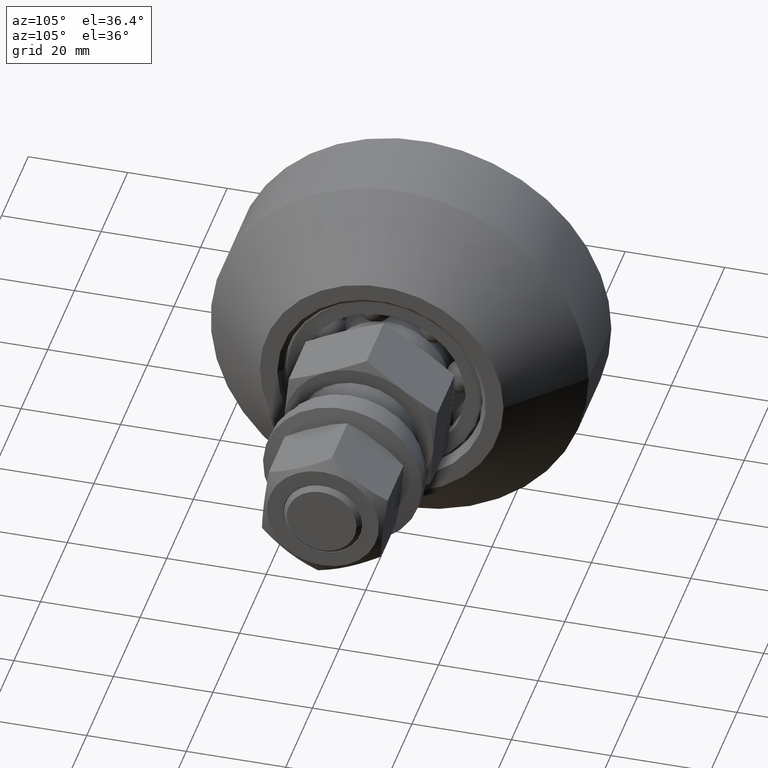
[diagram: clean part render]
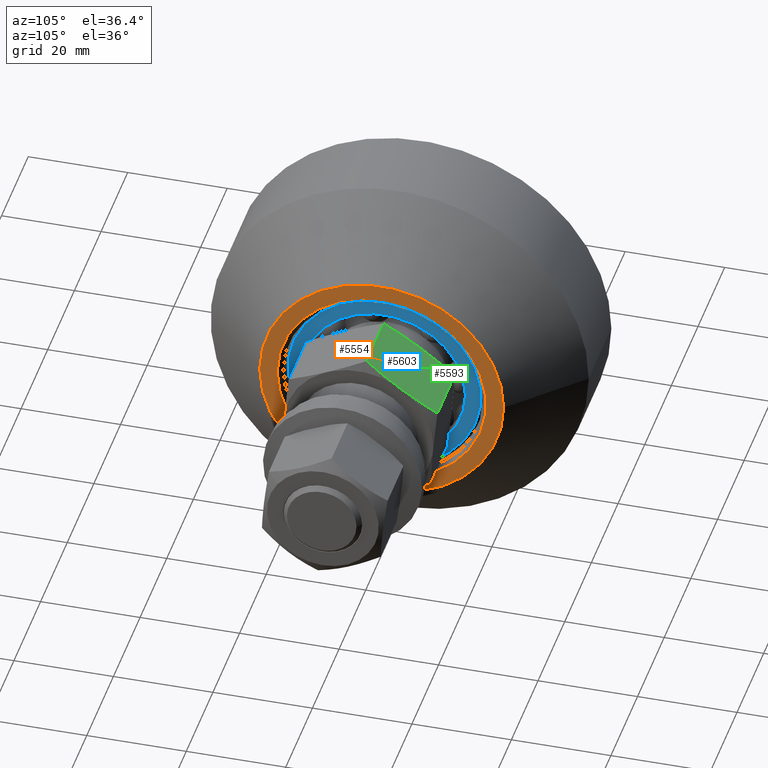
[diagram: same view with three faces highlighted in distinct colors, each labeled with its STEP entity id]
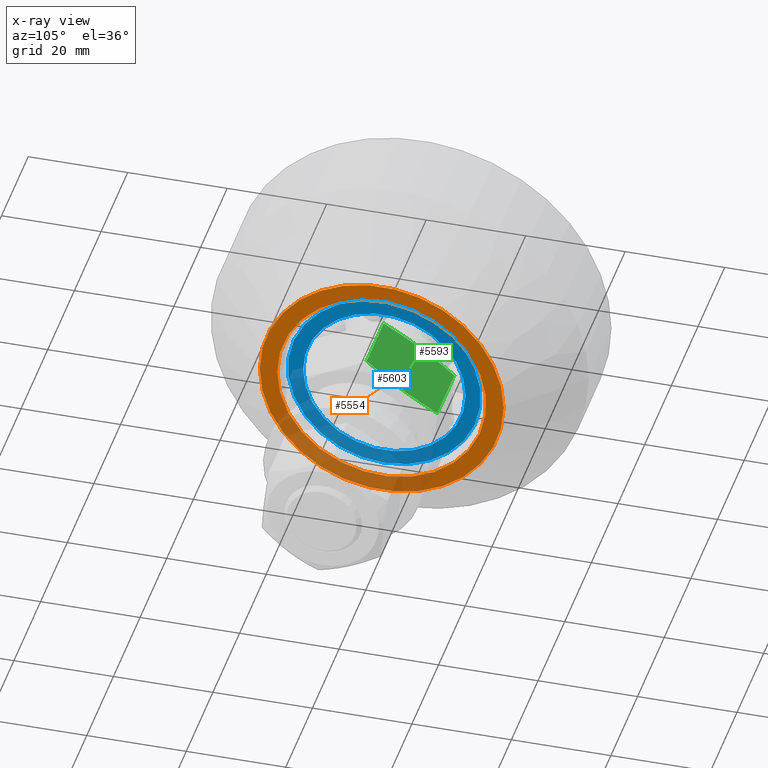
[diagram: x-ray of the same camera — body ghosted, the three highlighted faces saturated]
A machine part, auxiliary view with three faces highlighted in distinct colors.
The next image is the same camera in x-ray (body ghosted, the three faces saturated) — at least one of them is partly hidden behind the body in this view.
Their STEP definitions:

[orange] entity #5554 — the highlighted planar face has unit normal (1, 0, 0).
#168=FACE_BOUND('',#1130,.T.);
#558=PLANE('',#6286);
#822=FACE_OUTER_BOUND('',#1129,.T.);
#1129=EDGE_LOOP('',(#4869));
#1130=EDGE_LOOP('',(#4870));
#2081=CIRCLE('',#6283,21.);
#2084=CIRCLE('',#6287,24.5);
#2598=VERTEX_POINT('',#9603);
#2601=VERTEX_POINT('',#9611);
#3383=EDGE_CURVE('',#2598,#2598,#2081,.T.);
#3387=EDGE_CURVE('',#2601,#2601,#2084,.T.);
#4869=ORIENTED_EDGE('',*,*,#3387,.F.);
#4870=ORIENTED_EDGE('',*,*,#3383,.F.);
#5554=ADVANCED_FACE('',(#822,#168),#558,.T.);
#6283=AXIS2_PLACEMENT_3D('',#9604,#7638,#7639);
#6286=AXIS2_PLACEMENT_3D('',#9610,#7645,#7646);
#6287=AXIS2_PLACEMENT_3D('',#9612,#7647,#7648);
#7638=DIRECTION('center_axis',(-1.,0.,0.));
#7639=DIRECTION('ref_axis',(0.,-1.,0.));
#7645=DIRECTION('center_axis',(-1.,0.,0.));
#7646=DIRECTION('ref_axis',(0.,0.,1.));
#7647=DIRECTION('center_axis',(1.,0.,0.));
#7648=DIRECTION('ref_axis',(0.,1.,0.));
#9603=CARTESIAN_POINT('',(-22.,21.,-2.57175827820944E-15));
#9604=CARTESIAN_POINT('Origin',(-22.,0.,0.));
#9610=CARTESIAN_POINT('Origin',(-22.,22.25,0.));
#9611=CARTESIAN_POINT('',(-22.,-24.5,-3.00038465791102E-15));
#9612=CARTESIAN_POINT('Origin',(-22.,0.,0.));

[blue] entity #5603 — the highlighted planar face has unit normal (1, -0, -0).
#179=FACE_BOUND('',#1190,.T.);
#575=PLANE('',#6392);
#871=FACE_OUTER_BOUND('',#1189,.T.);
#1189=EDGE_LOOP('',(#5094));
#1190=EDGE_LOOP('',(#5095));
#2137=CIRCLE('',#6390,19.4);
#2139=CIRCLE('',#6393,16.32);
#2675=VERTEX_POINT('',#9894);
#2676=VERTEX_POINT('',#9898);
#3498=EDGE_CURVE('',#2675,#2675,#2137,.T.);
#3500=EDGE_CURVE('',#2676,#2676,#2139,.T.);
#5094=ORIENTED_EDGE('',*,*,#3498,.F.);
#5095=ORIENTED_EDGE('',*,*,#3500,.T.);
#5603=ADVANCED_FACE('',(#871,#179),#575,.T.);
#6390=AXIS2_PLACEMENT_3D('',#9895,#7887,#7888);
#6392=AXIS2_PLACEMENT_3D('',#9897,#7891,#7892);
#6393=AXIS2_PLACEMENT_3D('',#9899,#7893,#7894);
#7887=DIRECTION('center_axis',(0.,0.,-1.));
#7888=DIRECTION('ref_axis',(-1.22464679914735E-16,-1.,0.));
#7891=DIRECTION('center_axis',(0.,0.,1.));
#7892=DIRECTION('ref_axis',(1.,0.,0.));
#7893=DIRECTION('center_axis',(0.,0.,-1.));
#7894=DIRECTION('ref_axis',(0.,1.,-1.0200324008401E-16));
#9894=CARTESIAN_POINT('',(-19.4,-2.37581479034587E-15,12.));
#9895=CARTESIAN_POINT('Origin',(0.,0.,12.));
#9897=CARTESIAN_POINT('Origin',(0.,14.25,12.));
#9898=CARTESIAN_POINT('',(1.99862357620848E-15,-16.32,12.));
#9899=CARTESIAN_POINT('Origin',(0.,0.,12.));

[green] entity #5593 — the highlighted planar face has unit normal (-0, 0.5692, 0.8222).
#332=(
BOUNDED_CURVE()
B_SPLINE_CURVE(2,(#9696,#9697,#9698),.UNSPECIFIED.,.F.,.F.)
B_SPLINE_CURVE_WITH_KNOTS((3,3),(0.,0.790327458731379),.UNSPECIFIED.)
CURVE()
GEOMETRIC_REPRESENTATION_ITEM()
RATIONAL_B_SPLINE_CURVE((1.,1.03103791671952,1.))
REPRESENTATION_ITEM('')
);
#334=(
BOUNDED_CURVE()
B_SPLINE_CURVE(2,(#9707,#9708,#9709),.UNSPECIFIED.,.F.,.F.)
B_SPLINE_CURVE_WITH_KNOTS((3,3),(0.,0.790327458731379),.UNSPECIFIED.)
CURVE()
GEOMETRIC_REPRESENTATION_ITEM()
RATIONAL_B_SPLINE_CURVE((1.,1.03103791671952,1.))
REPRESENTATION_ITEM('')
);
#346=(
BOUNDED_CURVE()
B_SPLINE_CURVE(2,(#9773,#9774,#9775),.UNSPECIFIED.,.F.,.F.)
B_SPLINE_CURVE_WITH_KNOTS((3,3),(0.,0.790327458731372),.UNSPECIFIED.)
CURVE()
GEOMETRIC_REPRESENTATION_ITEM()
RATIONAL_B_SPLINE_CURVE((1.,1.03103791671951,1.))
REPRESENTATION_ITEM('')
);
#348=(
BOUNDED_CURVE()
B_SPLINE_CURVE(2,(#9784,#9785,#9786),.UNSPECIFIED.,.F.,.F.)
B_SPLINE_CURVE_WITH_KNOTS((3,3),(0.,0.790327458731372),.UNSPECIFIED.)
CURVE()
GEOMETRIC_REPRESENTATION_ITEM()
RATIONAL_B_SPLINE_CURVE((1.,1.03103791671951,1.))
REPRESENTATION_ITEM('')
);
#571=PLANE('',#6362);
#861=FACE_OUTER_BOUND('',#1176,.T.);
#1176=EDGE_LOOP('',(#5048,#5049,#5050,#5051,#5052,#5053,#5054,#5055));
#1527=LINE('',#9829,#1845);
#1533=LINE('',#9836,#1851);
#1539=LINE('',#9845,#1857);
#1541=LINE('',#9848,#1859);
#1845=VECTOR('',#7802,10.);
#1851=VECTOR('',#7810,10.);
#1857=VECTOR('',#7822,10.);
#1859=VECTOR('',#7826,10.);
#2625=VERTEX_POINT('',#9694);
#2626=VERTEX_POINT('',#9695);
#2628=VERTEX_POINT('',#9705);
#2629=VERTEX_POINT('',#9706);
#2646=VERTEX_POINT('',#9771);
#2647=VERTEX_POINT('',#9772);
#2649=VERTEX_POINT('',#9782);
#2650=VERTEX_POINT('',#9783);
#3425=EDGE_CURVE('',#2625,#2626,#332,.T.);
#3428=EDGE_CURVE('',#2628,#2629,#334,.T.);
#3446=EDGE_CURVE('',#2646,#2647,#346,.T.);
#3449=EDGE_CURVE('',#2649,#2650,#348,.T.);
#3464=EDGE_CURVE('',#2629,#2625,#1527,.T.);
#3470=EDGE_CURVE('',#2647,#2649,#1533,.T.);
#3476=EDGE_CURVE('',#2650,#2628,#1539,.T.);
#3478=EDGE_CURVE('',#2646,#2626,#1541,.T.);
#5048=ORIENTED_EDGE('',*,*,#3428,.T.);
#5049=ORIENTED_EDGE('',*,*,#3464,.T.);
#5050=ORIENTED_EDGE('',*,*,#3425,.T.);
#5051=ORIENTED_EDGE('',*,*,#3478,.F.);
#5052=ORIENTED_EDGE('',*,*,#3446,.T.);
#5053=ORIENTED_EDGE('',*,*,#3470,.T.);
#5054=ORIENTED_EDGE('',*,*,#3449,.T.);
#5055=ORIENTED_EDGE('',*,*,#3476,.T.);
#5593=ADVANCED_FACE('',(#861),#571,.T.);
#6362=AXIS2_PLACEMENT_3D('',#9850,#7829,#7830);
#7802=DIRECTION('',(0.,0.,1.));
#7810=DIRECTION('',(0.,0.,-1.));
#7822=DIRECTION('',(-1.,0.,0.));
#7826=DIRECTION('',(-1.,0.,0.));
#7829=DIRECTION('center_axis',(0.,1.,0.));
#7830=DIRECTION('ref_axis',(0.,0.,-1.));
#9694=CARTESIAN_POINT('',(1.5,15.,0.784641862145888));
#9695=CARTESIAN_POINT('',(2.11628314259158,15.,8.66025403784438));
#9696=CARTESIAN_POINT('Ctrl Pts',(1.5,15.,0.784641862145854));
#9697=CARTESIAN_POINT('Ctrl Pts',(1.55119818764891,15.,4.44240251296674));
#9698=CARTESIAN_POINT('Ctrl Pts',(2.11628314259158,15.,8.66025403784439));
#9705=CARTESIAN_POINT('',(2.11628314259158,15.,-8.66025403784439));
#9706=CARTESIAN_POINT('',(1.5,15.,-0.784641862145888));
#9707=CARTESIAN_POINT('Ctrl Pts',(2.11628314259158,15.,-8.66025403784439));
#9708=CARTESIAN_POINT('Ctrl Pts',(1.55119818764891,15.,-4.44240251296674));
#9709=CARTESIAN_POINT('Ctrl Pts',(1.5,15.,-0.784641862145854));
#9771=CARTESIAN_POINT('',(14.8837168574084,15.,8.66025403784438));
#9772=CARTESIAN_POINT('',(15.5,15.,0.784641862145888));
#9773=CARTESIAN_POINT('Ctrl Pts',(14.8837168574084,15.,8.6602540378444));
#9774=CARTESIAN_POINT('Ctrl Pts',(15.4488018123511,15.,4.44240251296679));
#9775=CARTESIAN_POINT('Ctrl Pts',(15.5,15.,0.784641862145928));
#9782=CARTESIAN_POINT('',(15.5,15.,-0.784641862145888));
#9783=CARTESIAN_POINT('',(14.8837168574084,15.,-8.66025403784439));
#9784=CARTESIAN_POINT('Ctrl Pts',(15.5,15.,-0.784641862145928));
#9785=CARTESIAN_POINT('Ctrl Pts',(15.4488018123511,15.,-4.44240251296679));
#9786=CARTESIAN_POINT('Ctrl Pts',(14.8837168574084,15.,-8.6602540378444));
#9829=CARTESIAN_POINT('',(1.5,15.,-5.55111512312578E-16));
#9836=CARTESIAN_POINT('',(15.5,15.,8.66025403784439));
#9845=CARTESIAN_POINT('',(15.5,15.,-8.66025403784439));
#9848=CARTESIAN_POINT('',(15.5,15.,8.66025403784439));
#9850=CARTESIAN_POINT('Origin',(15.5,15.,-1.11022302462516E-15));